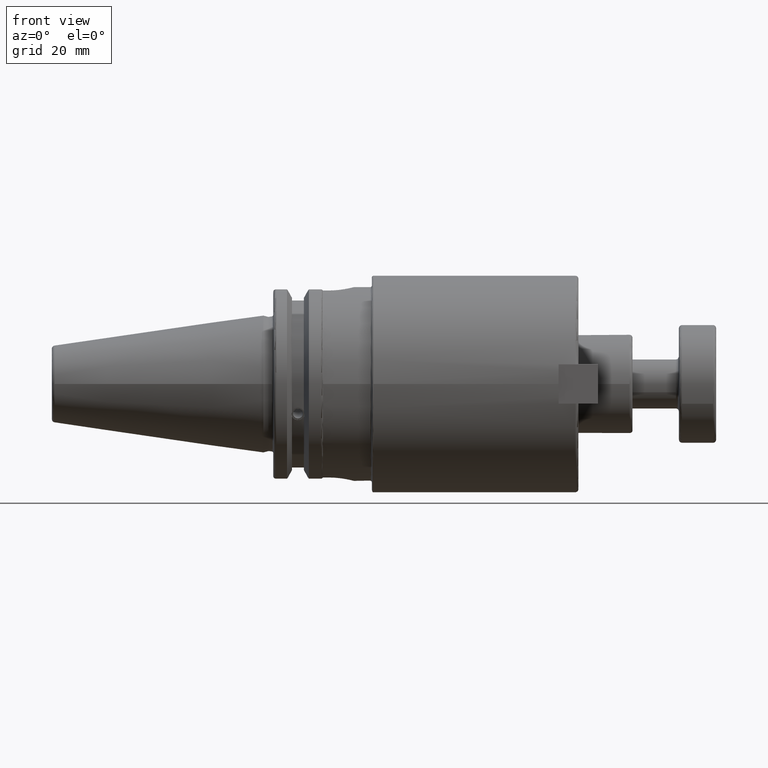
[diagram: clean part render]
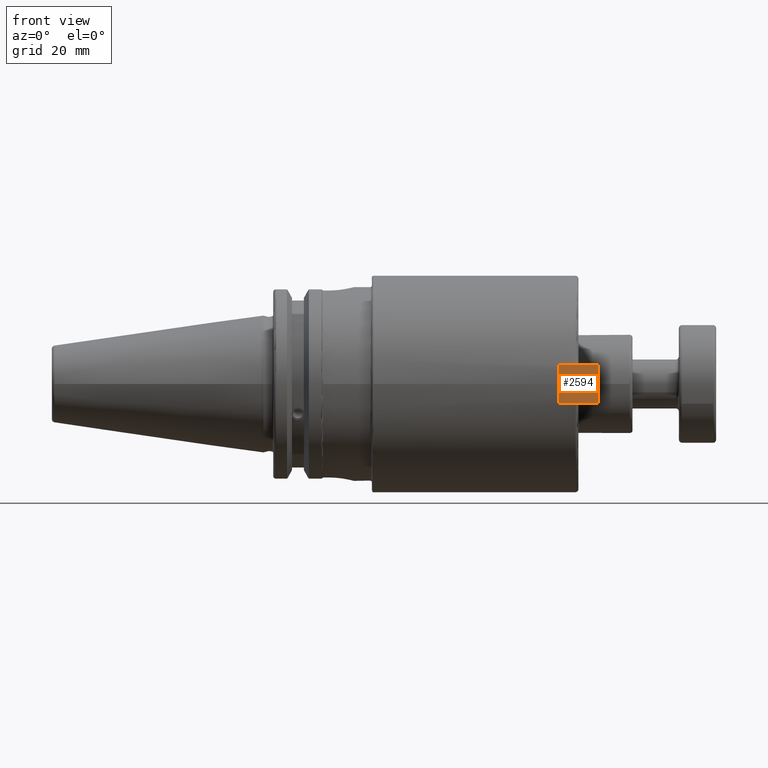
[diagram: same view with one face highlighted and labeled with its STEP entity id]
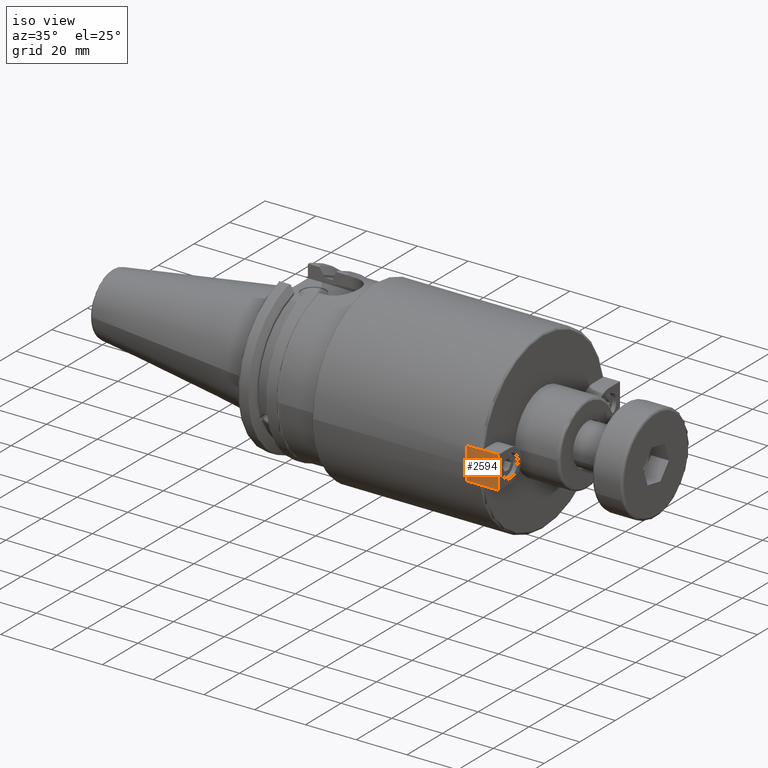
[diagram: same view with one face highlighted and labeled with its STEP entity id]
A machine part, front view. The second image highlights one B-rep face of the part: STEP entity #2594.
A second angle (iso view) of the same face is appended — the face is thin or edge-on in the first view.
In plain terms, the highlighted planar face has unit normal (0, -1, -0).
Its self-contained STEP definition (entity closure, byte-faithful):
#456=FACE_OUTER_BOUND('',#626,.T.);
#626=EDGE_LOOP('',(#2278,#2279,#2280,#2281));
#783=LINE('',#4905,#944);
#784=LINE('',#4908,#945);
#785=LINE('',#4910,#946);
#786=LINE('',#4911,#947);
#944=VECTOR('',#3670,10.);
#945=VECTOR('',#3673,10.);
#946=VECTOR('',#3674,10.);
#947=VECTOR('',#3675,10.);
#1229=VERTEX_POINT('',#4898);
#1232=VERTEX_POINT('',#4903);
#1233=VERTEX_POINT('',#4907);
#1234=VERTEX_POINT('',#4909);
#1587=EDGE_CURVE('',#1229,#1232,#783,.T.);
#1588=EDGE_CURVE('',#1233,#1229,#784,.T.);
#1589=EDGE_CURVE('',#1234,#1232,#785,.T.);
#1590=EDGE_CURVE('',#1233,#1234,#786,.T.);
#2278=ORIENTED_EDGE('',*,*,#1588,.T.);
#2279=ORIENTED_EDGE('',*,*,#1587,.T.);
#2280=ORIENTED_EDGE('',*,*,#1589,.F.);
#2281=ORIENTED_EDGE('',*,*,#1590,.F.);
#2454=PLANE('',#2977);
#2594=ADVANCED_FACE('',(#456),#2454,.T.);
#2977=AXIS2_PLACEMENT_3D('',#4906,#3671,#3672);
#3670=DIRECTION('',(0.,1.,0.));
#3671=DIRECTION('center_axis',(-1.74838271594513E-16,0.,-1.));
#3672=DIRECTION('ref_axis',(-1.,0.,1.74838271594513E-16));
#3673=DIRECTION('',(-1.,0.,1.74838271594513E-16));
#3674=DIRECTION('',(-1.,0.,1.74838271594513E-16));
#3675=DIRECTION('',(0.,1.,0.));
#4898=CARTESIAN_POINT('',(-6.35,0.,-6.35));
#4903=CARTESIAN_POINT('',(-6.35,12.7,-6.35));
#4905=CARTESIAN_POINT('',(-6.35,0.,-6.35));
#4906=CARTESIAN_POINT('Origin',(6.35,0.,-6.35));
#4907=CARTESIAN_POINT('',(6.35,0.,-6.35));
#4908=CARTESIAN_POINT('',(6.35,0.,-6.35));
#4909=CARTESIAN_POINT('',(6.35,12.7,-6.35));
#4910=CARTESIAN_POINT('',(6.35,12.7,-6.35));
#4911=CARTESIAN_POINT('',(6.35,0.,-6.35));